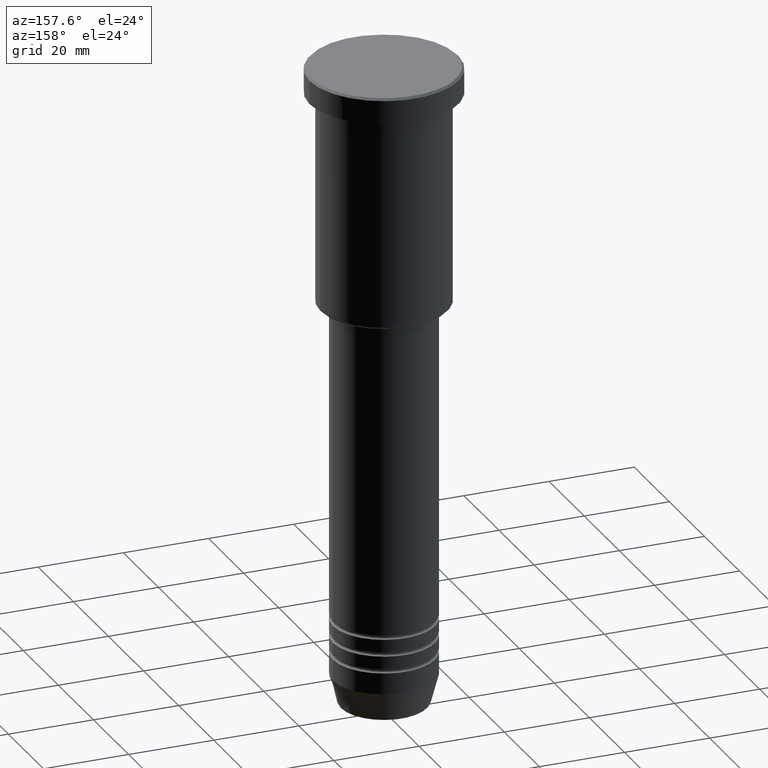
[diagram: clean part render]
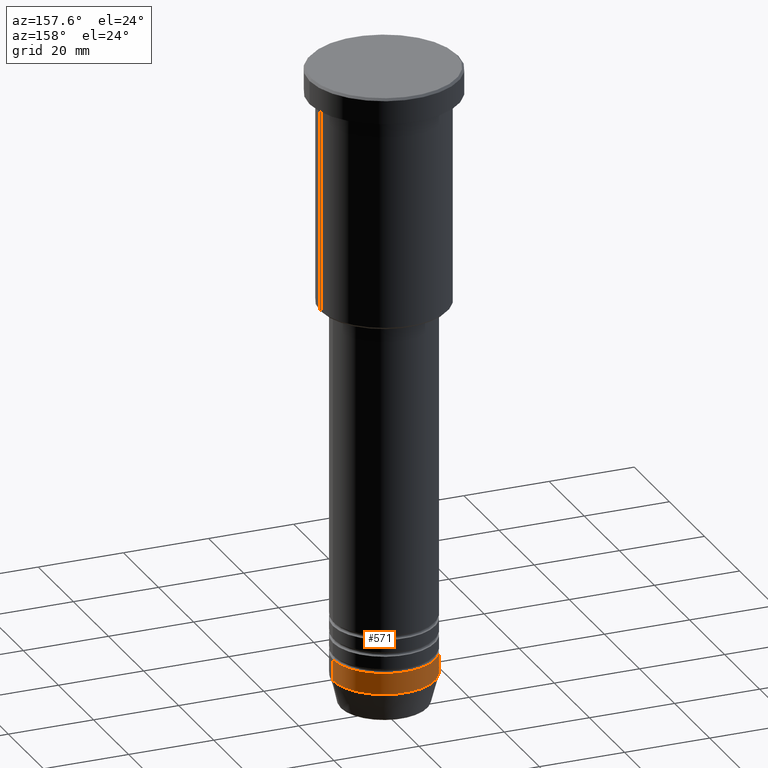
[diagram: same view with one face highlighted and labeled with its STEP entity id]
A machine part, auxiliary view. The second image highlights one B-rep face of the part: STEP entity #571.
In plain terms, the highlighted cylindrical surface (partial cylindrical patch) has radius 12 mm, axis along (-0, -0, 1).
Its self-contained STEP definition (entity closure, byte-faithful):
#51 = ORIENTED_EDGE ( 'NONE', *, *, #74, .F. ) ;
#74 = EDGE_CURVE ( 'NONE', #1023, #582, #1177, .T. ) ;
#80 = AXIS2_PLACEMENT_3D ( 'NONE', #295, #689, #1028 ) ;
#130 = CARTESIAN_POINT ( 'NONE',  ( -12.00000000000000000, 1.469576158976823947E-15, -144.0000000000000284 ) ) ;
#249 = DIRECTION ( 'NONE',  ( -0.000000000000000000, -0.000000000000000000, 1.000000000000000000 ) ) ;
#250 = EDGE_CURVE ( 'NONE', #1023, #1139, #273, .T. ) ;
#273 = CIRCLE ( 'NONE', #441, 12.00000000000000000 ) ;
#288 = VERTEX_POINT ( 'NONE', #342 ) ;
#295 = CARTESIAN_POINT ( 'NONE',  ( 0.000000000000000000, 0.000000000000000000, 0.000000000000000000 ) ) ;
#300 = ORIENTED_EDGE ( 'NONE', *, *, #587, .F. ) ;
#318 = FACE_OUTER_BOUND ( 'NONE', #1042, .T. ) ;
#342 = CARTESIAN_POINT ( 'NONE',  ( -12.00000000000000000, 1.469576158976823947E-15, -139.0000000000000000 ) ) ;
#394 = CIRCLE ( 'NONE', #1081, 12.00000000000000000 ) ;
#438 = DIRECTION ( 'NONE',  ( -0.000000000000000000, -0.000000000000000000, 1.000000000000000000 ) ) ;
#441 = AXIS2_PLACEMENT_3D ( 'NONE', #536, #438, #1170 ) ;
#482 = CARTESIAN_POINT ( 'NONE',  ( 0.000000000000000000, 0.000000000000000000, -139.0000000000000000 ) ) ;
#536 = CARTESIAN_POINT ( 'NONE',  ( 0.000000000000000000, 0.000000000000000000, -144.0000000000000284 ) ) ;
#546 = CARTESIAN_POINT ( 'NONE',  ( 12.00000000000000000, 0.000000000000000000, 0.000000000000000000 ) ) ;
#569 = ORIENTED_EDGE ( 'NONE', *, *, #250, .T. ) ;
#571 = ADVANCED_FACE ( 'NONE', ( #318 ), #770, .T. ) ;
#582 = VERTEX_POINT ( 'NONE', #756 ) ;
#587 = EDGE_CURVE ( 'NONE', #582, #288, #394, .T. ) ;
#599 = VECTOR ( 'NONE', #727, 1000.000000000000000 ) ;
#621 = LINE ( 'NONE', #883, #821 ) ;
#670 = DIRECTION ( 'NONE',  ( 1.000000000000000000, 0.000000000000000000, 0.000000000000000000 ) ) ;
#689 = DIRECTION ( 'NONE',  ( -0.000000000000000000, -0.000000000000000000, 1.000000000000000000 ) ) ;
#727 = DIRECTION ( 'NONE',  ( -0.000000000000000000, -0.000000000000000000, 1.000000000000000000 ) ) ;
#745 = EDGE_CURVE ( 'NONE', #1139, #288, #621, .T. ) ;
#756 = CARTESIAN_POINT ( 'NONE',  ( 12.00000000000000000, 0.000000000000000000, -139.0000000000000000 ) ) ;
#770 = CYLINDRICAL_SURFACE ( 'NONE', #80, 12.00000000000000000 ) ;
#821 = VECTOR ( 'NONE', #249, 1000.000000000000000 ) ;
#883 = CARTESIAN_POINT ( 'NONE',  ( -12.00000000000000000, 1.469576158976823947E-15, 0.000000000000000000 ) ) ;
#951 = CARTESIAN_POINT ( 'NONE',  ( 12.00000000000000000, 0.000000000000000000, -144.0000000000000284 ) ) ;
#1023 = VERTEX_POINT ( 'NONE', #951 ) ;
#1028 = DIRECTION ( 'NONE',  ( 1.000000000000000000, 0.000000000000000000, 0.000000000000000000 ) ) ;
#1042 = EDGE_LOOP ( 'NONE', ( #569, #1167, #300, #51 ) ) ;
#1081 = AXIS2_PLACEMENT_3D ( 'NONE', #482, #1116, #670 ) ;
#1116 = DIRECTION ( 'NONE',  ( -0.000000000000000000, -0.000000000000000000, 1.000000000000000000 ) ) ;
#1139 = VERTEX_POINT ( 'NONE', #130 ) ;
#1167 = ORIENTED_EDGE ( 'NONE', *, *, #745, .T. ) ;
#1170 = DIRECTION ( 'NONE',  ( 1.000000000000000000, 0.000000000000000000, 0.000000000000000000 ) ) ;
#1177 = LINE ( 'NONE', #546, #599 ) ;